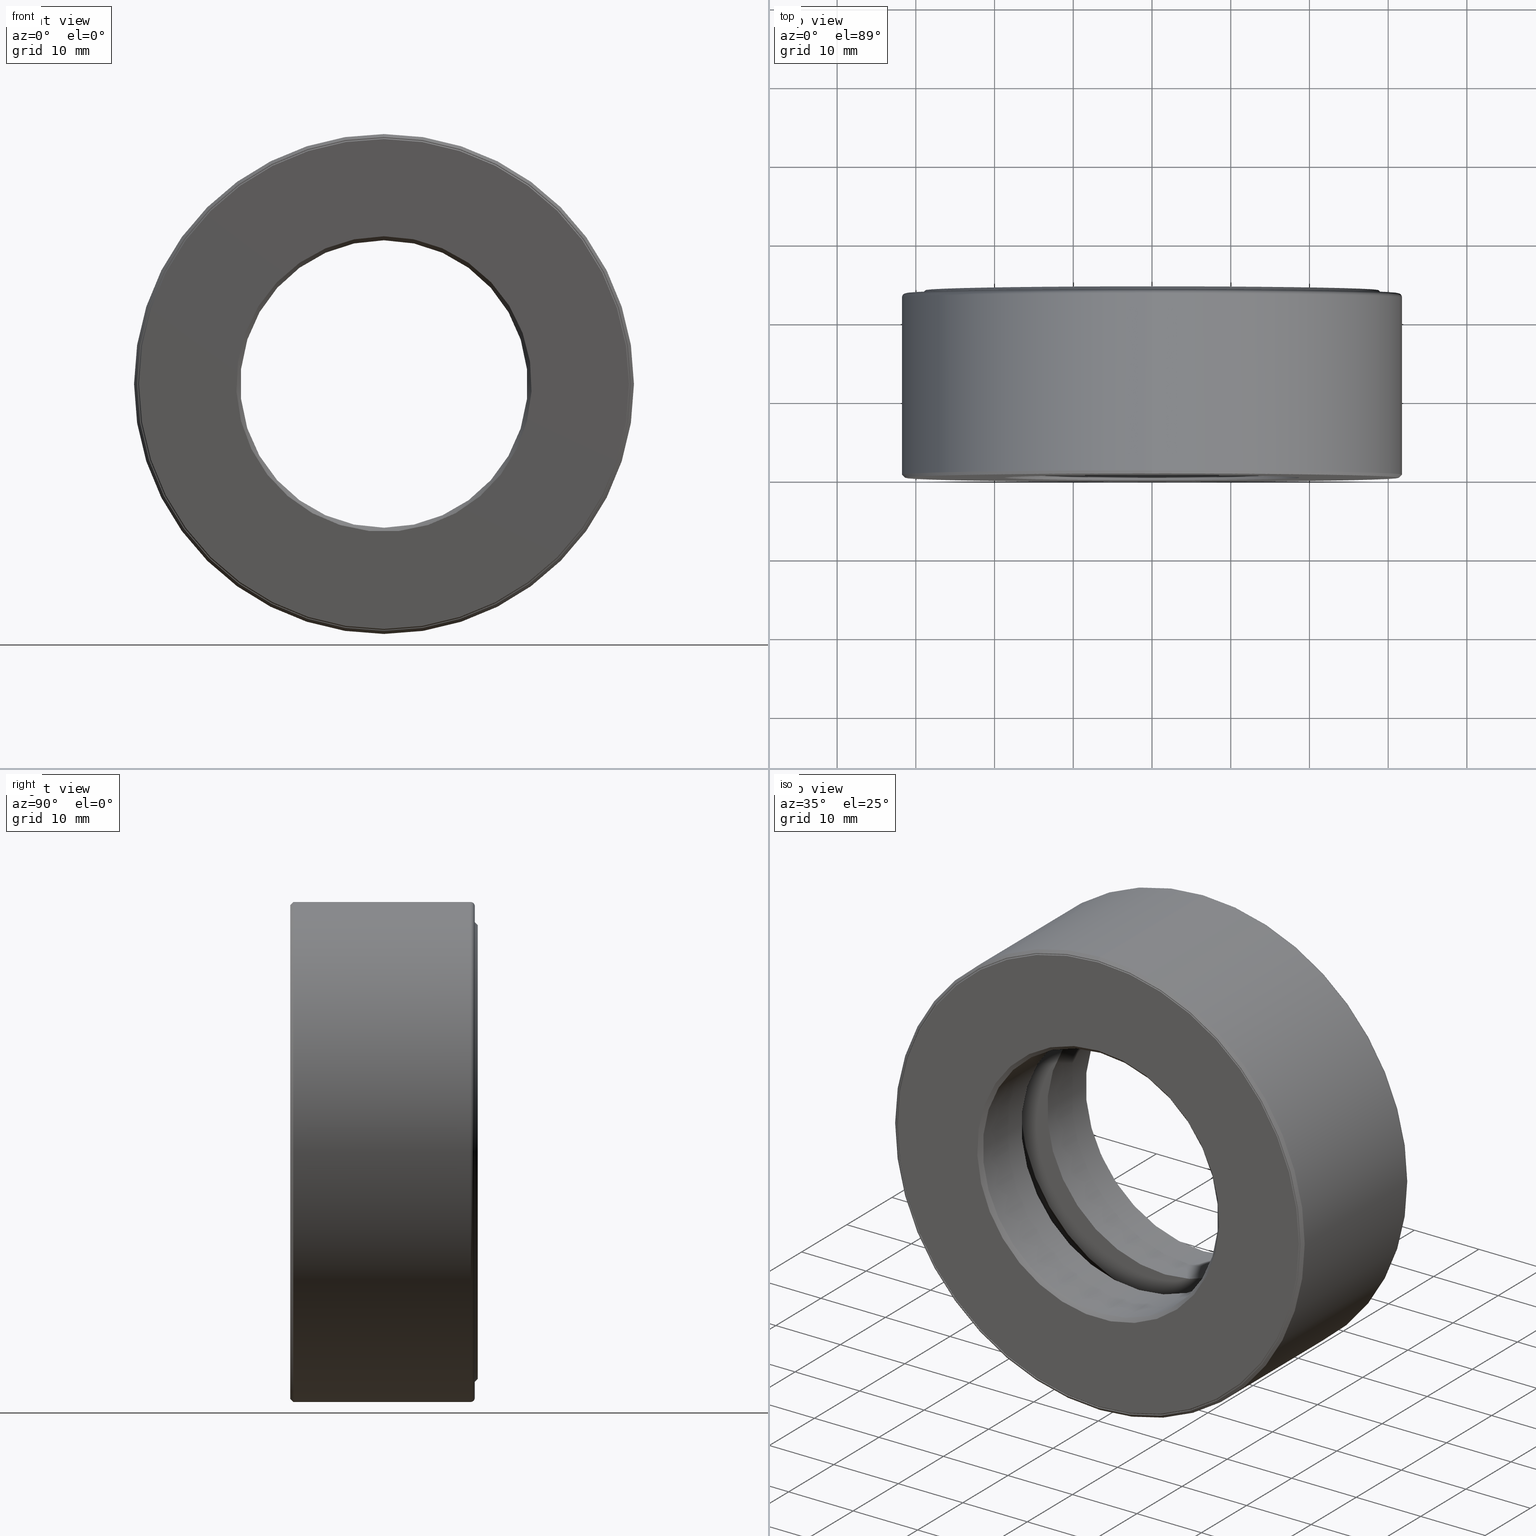
[diagram: canonical four-view strip — front | top / right | iso, engineering-drawing reading convention]
A machine part, canonical four-view strip (front | top / right | iso — engineering-drawing reading convention). The complete STEP part file that produces these views, byte-faithful:
ISO-10303-21;
HEADER;
FILE_DESCRIPTION (( 'STEP AP203' ),
    '1' );
FILE_NAME ('T-100-19.step',
    '2016-06-29T18:27:22',
    ( '' ),
    ( '' ),
    'SwSTEP 2.0',
    'SolidWorks 2016',
    '' );
FILE_SCHEMA (( 'CONFIG_CONTROL_DESIGN' ));
ENDSEC;

DATA;
#1 = LOCAL_TIME ( 14, 27, 22.00000000000000000, #587 ) ;
#2 = PRODUCT_DEFINITION ( 'UNKNOWN', '', #161, #477 ) ;
#3 = LENGTH_MEASURE_WITH_UNIT ( LENGTH_MEASURE( 0.02539999999999999900 ), #481 );
#4 = DIRECTION ( 'NONE',  ( -0.0000000000000000000, 1.000000000000000000, 0.0000000000000000000 ) ) ;
#5 = EDGE_LOOP ( 'NONE', ( #501 ) ) ;
#6 = CYLINDRICAL_SURFACE ( 'NONE', #164, 1.170000000000000200 ) ;
#7 = APPROVAL ( #20, 'UNSPECIFIED' ) ;
#8 = ADVANCED_FACE ( 'NONE', ( #28, #401 ), #355, .F. ) ;
#9 = DIRECTION ( 'NONE',  ( 0.0000000000000000000, 0.0000000000000000000, 1.000000000000000000 ) ) ;
#10 = PERSON_AND_ORGANIZATION ( #530, #162 ) ;
#11 = ADVANCED_FACE ( 'NONE', ( #203, #590 ), #226, .F. ) ;
#12 = FACE_OUTER_BOUND ( 'NONE', #250, .T. ) ;
#13 = CIRCLE ( 'NONE', #259, 1.250000000000000000 ) ;
#14 = PLANE ( 'NONE',  #450 ) ;
#15 = CARTESIAN_POINT ( 'NONE',  ( 0.0000000000000000000, 0.4687499999999999400, 0.0000000000000000000 ) ) ;
#16 = ADVANCED_FACE ( 'NONE', ( #370, #325 ), #134, .T. ) ;
#17 = CARTESIAN_POINT ( 'NONE',  ( 0.0000000000000000000, 0.0000000000000000000, 0.0000000000000000000 ) ) ;
#18 = AXIS2_PLACEMENT_3D ( 'NONE', #133, #49, #500 ) ;
#19 = ADVANCED_FACE ( 'NONE', ( #341, #383 ), #357, .F. ) ;
#20 = APPROVAL_STATUS ( 'not_yet_approved' ) ;
#21 = EDGE_LOOP ( 'NONE', ( #295 ) ) ;
#22 = FACE_BOUND ( 'NONE', #597, .T. ) ;
#23 = EDGE_CURVE ( 'NONE', #458, #458, #81, .T. ) ;
#24 = CARTESIAN_POINT ( 'NONE',  ( 0.0000000000000000000, 0.9024999999999998600, 1.250000000000000000 ) ) ;
#25 = CC_DESIGN_PERSON_AND_ORGANIZATION_ASSIGNMENT ( #189, #70, ( #2 ) ) ;
#26 = VERTEX_POINT ( 'NONE', #572 ) ;
#27 = EDGE_LOOP ( 'NONE', ( #156 ) ) ;
#28 = FACE_OUTER_BOUND ( 'NONE', #219, .T. ) ;
#29 = FACE_OUTER_BOUND ( 'NONE', #75, .T. ) ;
#30 = APPROVAL_ROLE ( '' ) ;
#31 = DIRECTION ( 'NONE',  ( 0.0000000000000000000, 0.0000000000000000000, 1.000000000000000000 ) ) ;
#32 = VERTEX_POINT ( 'NONE', #396 ) ;
#33 = CARTESIAN_POINT ( 'NONE',  ( 0.0000000000000000000, 0.3562500000000000700, 0.0000000000000000000 ) ) ;
#34 = APPROVAL_STATUS ( 'not_yet_approved' ) ;
#35 = CC_DESIGN_DATE_AND_TIME_ASSIGNMENT ( #112, #304, ( #281 ) ) ;
#36 = CLOSED_SHELL ( 'NONE', ( #558, #561, #438, #387, #198, #568, #467, #382 ) ) ;
#37 = CARTESIAN_POINT ( 'NONE',  ( 0.0000000000000000000, 0.3562500000000000700, 0.0000000000000000000 ) ) ;
#38 = EDGE_LOOP ( 'NONE', ( #214 ) ) ;
#39 = FACE_OUTER_BOUND ( 'NONE', #99, .T. ) ;
#40 = MANIFOLD_SOLID_BREP ( 'BALLS[2]', #508 ) ;
#41 = CARTESIAN_POINT ( 'NONE',  ( 0.0000000000000000000, 0.9174999999999995400, 0.0000000000000000000 ) ) ;
#42 = CC_DESIGN_DATE_AND_TIME_ASSIGNMENT ( #330, #394, ( #2 ) ) ;
#43 = DIRECTION ( 'NONE',  ( 0.0000000000000000000, 0.0000000000000000000, 1.000000000000000000 ) ) ;
#44 = VERTEX_POINT ( 'NONE', #352 ) ;
#45 = CARTESIAN_POINT ( 'NONE',  ( 0.0000000000000000000, 0.3562500000000000700, 0.0000000000000000000 ) ) ;
#46 = AXIS2_PLACEMENT_3D ( 'NONE', #520, #62, #285 ) ;
#47 = EDGE_LOOP ( 'NONE', ( #535 ) ) ;
#48 = FACE_OUTER_BOUND ( 'NONE', #105, .T. ) ;
#49 = DIRECTION ( 'NONE',  ( -0.0000000000000000000, 1.000000000000000000, -0.0000000000000000000 ) ) ;
#50 = DIRECTION ( 'NONE',  ( -0.0000000000000000000, 1.000000000000000000, -0.0000000000000000000 ) ) ;
#51 = VERTEX_POINT ( 'NONE', #68 ) ;
#52 = CARTESIAN_POINT ( 'NONE',  ( 0.0000000000000000000, -5.975917486140573900E-017, 0.0000000000000000000 ) ) ;
#53 = EDGE_CURVE ( 'NONE', #125, #125, #255, .T. ) ;
#54 = ORIENTED_EDGE ( 'NONE', *, *, #408, .F. ) ;
#55 = CYLINDRICAL_SURFACE ( 'NONE', #236, 1.250000000000000000 ) ;
#56 = DIRECTION ( 'NONE',  ( 0.0000000000000000000, 0.0000000000000000000, 1.000000000000000000 ) ) ;
#57 = APPROVAL_PERSON_ORGANIZATION ( #437, #222, #307 ) ;
#58 = DIRECTION ( 'NONE',  ( -0.0000000000000000000, 1.000000000000000000, -0.0000000000000000000 ) ) ;
#59 = EDGE_LOOP ( 'NONE', ( #209 ) ) ;
#60 = DIRECTION ( 'NONE',  ( 0.0000000000000000000, -1.000000000000000000, 0.0000000000000000000 ) ) ;
#61 = FACE_OUTER_BOUND ( 'NONE', #466, .T. ) ;
#62 = DIRECTION ( 'NONE',  ( 0.0000000000000000000, -1.000000000000000000, 0.0000000000000000000 ) ) ;
#63 = DIRECTION ( 'NONE',  ( -0.0000000000000000000, 1.000000000000000000, 0.0000000000000000000 ) ) ;
#64 = AXIS2_PLACEMENT_3D ( 'NONE', #239, #378, #436 ) ;
#65 = APPLICATION_CONTEXT ( 'configuration controlled 3d designs of mechanical parts and assemblies' ) ;
#66 = FACE_BOUND ( 'NONE', #448, .T. ) ;
#67 = ORIENTED_EDGE ( 'NONE', *, *, #139, .F. ) ;
#68 = CARTESIAN_POINT ( 'NONE',  ( 0.0000000000000000000, 0.5812499999999999300, 1.183500000000000000 ) ) ;
#69 = ADVANCED_FACE ( 'NONE', ( #66, #12 ), #400, .F. ) ;
#70 = PERSON_AND_ORGANIZATION_ROLE ( 'creator' ) ;
#71 = PERSON_AND_ORGANIZATION ( #530, #162 ) ;
#72 = CARTESIAN_POINT ( 'NONE',  ( 0.0000000000000000000, 0.005000000000000045200, 1.230000000000000000 ) ) ;
#73 = EDGE_LOOP ( 'NONE', ( #261 ) ) ;
#74 = CARTESIAN_POINT ( 'NONE',  ( 0.0000000000000000000, 0.9375000000000000000, 0.7387500000000001300 ) ) ;
#75 = EDGE_LOOP ( 'NONE', ( #121 ) ) ;
#76 = FACE_OUTER_BOUND ( 'NONE', #278, .T. ) ;
#77 = EDGE_CURVE ( 'NONE', #391, #391, #557, .T. ) ;
#78 = PRODUCT ( 'T-100-19', 'T-100-19', '', ( #109 ) ) ;
#79 = DIRECTION ( 'NONE',  ( -0.0000000000000000000, 1.000000000000000000, -0.0000000000000000000 ) ) ;
#80 = EDGE_LOOP ( 'NONE', ( #495 ) ) ;
#81 = CIRCLE ( 'NONE', #132, 0.7187499999999997800 ) ;
#82 = PLANE ( 'NONE',  #215 ) ;
#83 = AXIS2_PLACEMENT_3D ( 'NONE', #243, #289, #107 ) ;
#84 = DIRECTION ( 'NONE',  ( 0.0000000000000000000, -1.000000000000000000, 0.0000000000000000000 ) ) ;
#85 = DATE_AND_TIME ( #533, #167 ) ;
#86 = DIRECTION ( 'NONE',  ( 0.0000000000000000000, 0.0000000000000000000, 1.000000000000000000 ) ) ;
#87 = EDGE_CURVE ( 'NONE', #130, #130, #183, .T. ) ;
#88 = ORIENTED_EDGE ( 'NONE', *, *, #115, .F. ) ;
#89 = EDGE_LOOP ( 'NONE', ( #454 ) ) ;
#90 = CIRCLE ( 'NONE', #545, 1.229999999999999800 ) ;
#91 = CARTESIAN_POINT ( 'NONE',  ( 0.0000000000000000000, 0.5812499999999999300, 0.0000000000000000000 ) ) ;
#92 = CARTESIAN_POINT ( 'NONE',  ( 0.0000000000000000000, 0.9024999999999998600, 0.0000000000000000000 ) ) ;
#93 = AXIS2_PLACEMENT_3D ( 'NONE', #476, #434, #384 ) ;
#94 = EDGE_LOOP ( 'NONE', ( #460 ) ) ;
#95 = DIRECTION ( 'NONE',  ( -0.0000000000000000000, 1.000000000000000000, -0.0000000000000000000 ) ) ;
#96 = DIRECTION ( 'NONE',  ( 0.0000000000000000000, 0.0000000000000000000, 1.000000000000000000 ) ) ;
#97 = COORDINATED_UNIVERSAL_TIME_OFFSET ( 5, 0, .BEHIND. ) ;
#98 = ORIENTED_EDGE ( 'NONE', *, *, #435, .F. ) ;
#99 = EDGE_LOOP ( 'NONE', ( #106 ) ) ;
#100 = CYLINDRICAL_SURFACE ( 'NONE', #604, 1.223000000000000100 ) ;
#101 = DIRECTION ( 'NONE',  ( 0.0000000000000000000, 0.0000000000000000000, 1.000000000000000000 ) ) ;
#102 = CARTESIAN_POINT ( 'NONE',  ( 0.0000000000000000000, 0.9224999999999998800, 0.0000000000000000000 ) ) ;
#103 = AXIS2_PLACEMENT_3D ( 'NONE', #362, #129, #468 ) ;
#104 = ADVANCED_FACE ( 'NONE', ( #516, #440 ), #310, .T. ) ;
#105 = EDGE_LOOP ( 'NONE', ( #472 ) ) ;
#106 = ORIENTED_EDGE ( 'NONE', *, *, #435, .T. ) ;
#107 = DIRECTION ( 'NONE',  ( 0.0000000000000000000, 0.0000000000000000000, 1.000000000000000000 ) ) ;
#108 = CONICAL_SURFACE ( 'NONE', #361, 1.235000000000000100, 0.7853981633974463900 ) ;
#109 = MECHANICAL_CONTEXT ( 'NONE', #65, 'mechanical' ) ;
#110 = PLANE ( 'NONE',  #317 ) ;
#111 = AXIS2_PLACEMENT_3D ( 'NONE', #414, #365, #459 ) ;
#112 = DATE_AND_TIME ( #179, #554 ) ;
#113 = CARTESIAN_POINT ( 'NONE',  ( 0.0000000000000000000, 0.9024999999999998600, 1.170000000000000200 ) ) ;
#114 = EDGE_LOOP ( 'NONE', ( #478 ) ) ;
#115 = EDGE_CURVE ( 'NONE', #522, #522, #270, .T. ) ;
#116 = CARTESIAN_POINT ( 'NONE',  ( 0.0000000000000000000, 0.9375000000000000000, 1.134999999999999800 ) ) ;
#117 = CYLINDRICAL_SURFACE ( 'NONE', #93, 1.230000000000000000 ) ;
#118 = DIRECTION ( 'NONE',  ( 0.0000000000000000000, 0.0000000000000000000, 1.000000000000000000 ) ) ;
#119 = CARTESIAN_POINT ( 'NONE',  ( 0.0000000000000000000, 0.4687499999999999400, 0.0000000000000000000 ) ) ;
#120 = ORIENTED_EDGE ( 'NONE', *, *, #385, .F. ) ;
#121 = ORIENTED_EDGE ( 'NONE', *, *, #595, .T. ) ;
#122 = FACE_BOUND ( 'NONE', #94, .T. ) ;
#123 = EDGE_CURVE ( 'NONE', #32, #32, #486, .T. ) ;
#124 = PRODUCT_DEFINITION_SHAPE ( 'NONE', 'NONE',  #2 ) ;
#125 = VERTEX_POINT ( 'NONE', #573 ) ;
#126 = CARTESIAN_POINT ( 'NONE',  ( 0.0000000000000000000, 0.0000000000000000000, 0.0000000000000000000 ) ) ;
#127 = ORIENTED_EDGE ( 'NONE', *, *, #115, .T. ) ;
#128 = CYLINDRICAL_SURFACE ( 'NONE', #171, 1.230000000000000000 ) ;
#129 = DIRECTION ( 'NONE',  ( -0.0000000000000000000, 1.000000000000000000, 0.0000000000000000000 ) ) ;
#130 = VERTEX_POINT ( 'NONE', #441 ) ;
#131 = CARTESIAN_POINT ( 'NONE',  ( 1.033500000000000100, 0.4687499999999998900, -7.216891927388756100E-015 ) ) ;
#132 = AXIS2_PLACEMENT_3D ( 'NONE', #451, #447, #299 ) ;
#133 = CARTESIAN_POINT ( 'NONE',  ( 0.0000000000000000000, 0.9375000000000000000, 0.0000000000000000000 ) ) ;
#134 = CONICAL_SURFACE ( 'NONE', #145, 1.225000000000000100, 0.7853981633974325100 ) ;
#135 = CIRCLE ( 'NONE', #492, 1.225000000000000100 ) ;
#136 = DIRECTION ( 'NONE',  ( -0.0000000000000000000, 1.000000000000000000, -0.0000000000000000000 ) ) ;
#137 = PERSON_AND_ORGANIZATION ( #530, #162 ) ;
#138 = DIRECTION ( 'NONE',  ( 0.0000000000000000000, 0.0000000000000000000, 1.000000000000000000 ) ) ;
#139 = EDGE_CURVE ( 'NONE', #267, #267, #510, .T. ) ;
#140 = ORIENTED_EDGE ( 'NONE', *, *, #23, .F. ) ;
#141 = CARTESIAN_POINT ( 'NONE',  ( -1.033500000000000100, 0.4687499999999998900, 0.0000000000000000000 ) ) ;
#142 = MANIFOLD_SOLID_BREP ( 'Revolve2[1]', #556 ) ;
#143 = FACE_OUTER_BOUND ( 'NONE', #73, .T. ) ;
#144 = DIRECTION ( 'NONE',  ( 0.0000000000000000000, 0.0000000000000000000, 1.000000000000000000 ) ) ;
#145 = AXIS2_PLACEMENT_3D ( 'NONE', #253, #588, #31 ) ;
#146 = AXIS2_PLACEMENT_3D ( 'NONE', #443, #388, #576 ) ;
#147 = DIRECTION ( 'NONE',  ( 0.0000000000000000000, 0.0000000000000000000, 1.000000000000000000 ) ) ;
#148 = PERSON_AND_ORGANIZATION ( #530, #162 ) ;
#149 = EDGE_LOOP ( 'NONE', ( #127 ) ) ;
#150 = EDGE_LOOP ( 'NONE', ( #88 ) ) ;
#151 = FACE_OUTER_BOUND ( 'NONE', #489, .T. ) ;
#152 = DIRECTION ( 'NONE',  ( -1.000000000000000000, 0.0000000000000000000, 3.491481338843131800E-015 ) ) ;
#153 =( NAMED_UNIT ( * ) PLANE_ANGLE_UNIT ( ) SI_UNIT ( $, .RADIAN. ) );
#154 = AXIS2_PLACEMENT_3D ( 'NONE', #41, #216, #86 ) ;
#155 = DIRECTION ( 'NONE',  ( -0.0000000000000000000, 1.000000000000000000, -0.0000000000000000000 ) ) ;
#156 = ORIENTED_EDGE ( 'NONE', *, *, #488, .T. ) ;
#157 = AXIS2_PLACEMENT_3D ( 'NONE', #282, #194, #9 ) ;
#158 = FACE_OUTER_BOUND ( 'NONE', #578, .T. ) ;
#159 = APPROVAL_STATUS ( 'not_yet_approved' ) ;
#160 =( NAMED_UNIT ( * ) SI_UNIT ( $, .STERADIAN. ) SOLID_ANGLE_UNIT ( ) );
#161 = PRODUCT_DEFINITION_FORMATION_WITH_SPECIFIED_SOURCE ( 'ANY', '', #78, .NOT_KNOWN. ) ;
#162 = ORGANIZATION ( 'UNSPECIFIED', 'UNSPECIFIED', '' ) ;
#163 = ORIENTED_EDGE ( 'NONE', *, *, #339, .F. ) ;
#164 = AXIS2_PLACEMENT_3D ( 'NONE', #323, #553, #328 ) ;
#165 = CIRCLE ( 'NONE', #429, 1.222999999999999900 ) ;
#166 = PERSON_AND_ORGANIZATION_ROLE ( 'creator' ) ;
#167 = LOCAL_TIME ( 14, 27, 22.00000000000000000, #427 ) ;
#168 = DIRECTION ( 'NONE',  ( -0.0000000000000000000, 1.000000000000000000, -0.0000000000000000000 ) ) ;
#169 = CLOSED_SHELL ( 'NONE', ( #518 ) ) ;
#170 = CONICAL_SURFACE ( 'NONE', #46, 1.134999999999999800, 0.7853981633974490600 ) ;
#171 = AXIS2_PLACEMENT_3D ( 'NONE', #421, #136, #506 ) ;
#172 = DIRECTION ( 'NONE',  ( -0.0000000000000000000, 1.000000000000000000, -0.0000000000000000000 ) ) ;
#173 = DIRECTION ( 'NONE',  ( -0.0000000000000000000, 1.000000000000000000, -0.0000000000000000000 ) ) ;
#174 = VERTEX_POINT ( 'NONE', #298 ) ;
#175 = DIRECTION ( 'NONE',  ( -0.0000000000000000000, 1.000000000000000000, -0.0000000000000000000 ) ) ;
#176 = ORIENTED_EDGE ( 'NONE', *, *, #123, .F. ) ;
#177 = CIRCLE ( 'NONE', #224, 1.170000000000000200 ) ;
#178 = DIRECTION ( 'NONE',  ( -0.0000000000000000000, 1.000000000000000000, -0.0000000000000000000 ) ) ;
#179 = CALENDAR_DATE ( 2016, 29, 6 ) ;
#180 = VERTEX_POINT ( 'NONE', #251 ) ;
#181 = AXIS2_PLACEMENT_3D ( 'NONE', #409, #175, #499 ) ;
#182 = ORIENTED_EDGE ( 'NONE', *, *, #373, .T. ) ;
#183 = CIRCLE ( 'NONE', #550, 0.7187500000000000000 ) ;
#184 = EDGE_LOOP ( 'NONE', ( #410 ) ) ;
#185 = CARTESIAN_POINT ( 'NONE',  ( 0.0000000000000000000, 0.0000000000000000000, 0.0000000000000000000 ) ) ;
#186 = MANIFOLD_SOLID_BREP ( 'BALLS[1]', #332 ) ;
#187 = CC_DESIGN_SECURITY_CLASSIFICATION ( #281, ( #161 ) ) ;
#188 = CARTESIAN_POINT ( 'NONE',  ( 0.0000000000000000000, -6.016067509137474700E-017, 0.0000000000000000000 ) ) ;
#189 = PERSON_AND_ORGANIZATION ( #530, #162 ) ;
#190 = CARTESIAN_POINT ( 'NONE',  ( 0.0000000000000000000, -5.975917486140577600E-017, 0.0000000000000000000 ) ) ;
#191 = AXIS2_PLACEMENT_3D ( 'NONE', #141, #511, #231 ) ;
#192 = ORIENTED_EDGE ( 'NONE', *, *, #139, .T. ) ;
#193 = ORIENTED_EDGE ( 'NONE', *, *, #290, .T. ) ;
#194 = DIRECTION ( 'NONE',  ( -0.0000000000000000000, 1.000000000000000000, -0.0000000000000000000 ) ) ;
#195 = FACE_OUTER_BOUND ( 'NONE', #202, .T. ) ;
#196 = ADVANCED_FACE ( 'NONE', ( ), #536, .T. ) ;
#197 = PLANE ( 'NONE',  #64 ) ;
#198 = ADVANCED_FACE ( 'NONE', ( #195, #305 ), #213, .F. ) ;
#199 = CARTESIAN_POINT ( 'NONE',  ( 0.0000000000000000000, 0.0000000000000000000, 0.0000000000000000000 ) ) ;
#200 = PERSON_AND_ORGANIZATION ( #530, #162 ) ;
#201 = CARTESIAN_POINT ( 'NONE',  ( 0.0000000000000000000, 0.3562499999999999000, 1.229999999999999800 ) ) ;
#202 = EDGE_LOOP ( 'NONE', ( #220 ) ) ;
#203 = FACE_OUTER_BOUND ( 'NONE', #369, .T. ) ;
#204 = CARTESIAN_POINT ( 'NONE',  ( 0.0000000000000000000, 0.3562500000000000100, 1.183500000000000000 ) ) ;
#205 = CARTESIAN_POINT ( 'NONE',  ( 0.0000000000000000000, 0.9174999999999995400, 0.7187500000000000000 ) ) ;
#206 = AXIS2_PLACEMENT_3D ( 'NONE', #601, #50, #276 ) ;
#207 = DIRECTION ( 'NONE',  ( 0.0000000000000000000, -0.0000000000000000000, -1.000000000000000000 ) ) ;
#208 = EDGE_CURVE ( 'NONE', #258, #258, #519, .T. ) ;
#209 = ORIENTED_EDGE ( 'NONE', *, *, #246, .T. ) ;
#210 = DIRECTION ( 'NONE',  ( 0.0000000000000000000, -0.0000000000000000000, -1.000000000000000000 ) ) ;
#211 = ORIENTED_EDGE ( 'NONE', *, *, #77, .F. ) ;
#212 = CC_DESIGN_APPROVAL ( #7, ( #2 ) ) ;
#213 = CONICAL_SURFACE ( 'NONE', #504, 0.7187500000000000000, 0.7853981633974415100 ) ;
#214 = ORIENTED_EDGE ( 'NONE', *, *, #290, .F. ) ;
#215 = AXIS2_PLACEMENT_3D ( 'NONE', #37, #84, #591 ) ;
#216 = DIRECTION ( 'NONE',  ( -0.0000000000000000000, 1.000000000000000000, -0.0000000000000000000 ) ) ;
#217 = DIRECTION ( 'NONE',  ( 0.0000000000000000000, 0.0000000000000000000, 1.000000000000000000 ) ) ;
#218 = DIRECTION ( 'NONE',  ( 0.0000000000000000000, 0.0000000000000000000, 1.000000000000000000 ) ) ;
#219 = EDGE_LOOP ( 'NONE', ( #232 ) ) ;
#220 = ORIENTED_EDGE ( 'NONE', *, *, #343, .T. ) ;
#221 = CIRCLE ( 'NONE', #584, 1.230000000000000000 ) ;
#222 = APPROVAL ( #159, 'UNSPECIFIED' ) ;
#223 = CARTESIAN_POINT ( 'NONE',  ( 0.0000000000000000000, 0.8495000000000000300, 0.0000000000000000000 ) ) ;
#224 = AXIS2_PLACEMENT_3D ( 'NONE', #102, #331, #338 ) ;
#225 = CARTESIAN_POINT ( 'NONE',  ( 0.0000000000000000000, 0.0000000000000000000, 0.0000000000000000000 ) ) ;
#226 = CONICAL_SURFACE ( 'NONE', #515, 0.7187499999999997800, 0.7853981633974517200 ) ;
#227 = CYLINDRICAL_SURFACE ( 'NONE', #524, 0.7187500000000000000 ) ;
#228 = DIRECTION ( 'NONE',  ( 0.0000000000000000000, 0.0000000000000000000, 1.000000000000000000 ) ) ;
#229 = VERTEX_POINT ( 'NONE', #72 ) ;
#230 = AXIS2_PLACEMENT_3D ( 'NONE', #322, #4, #96 ) ;
#231 = DIRECTION ( 'NONE',  ( 1.000000000000000000, 0.0000000000000000000, 0.0000000000000000000 ) ) ;
#232 = ORIENTED_EDGE ( 'NONE', *, *, #235, .F. ) ;
#233 = CIRCLE ( 'NONE', #335, 0.8835000000000000600 ) ;
#234 = DIRECTION ( 'NONE',  ( 0.0000000000000000000, 0.0000000000000000000, 1.000000000000000000 ) ) ;
#235 = EDGE_CURVE ( 'NONE', #407, #407, #598, .T. ) ;
#236 = AXIS2_PLACEMENT_3D ( 'NONE', #199, #569, #144 ) ;
#237 = ADVANCED_FACE ( 'NONE', ( #503, #551 ), #82, .F. ) ;
#238 = APPROVAL_DATE_TIME ( #389, #512 ) ;
#239 = CARTESIAN_POINT ( 'NONE',  ( -2.409539675747121100E-016, 0.5812499999999999300, 0.0000000000000000000 ) ) ;
#240 = ADVANCED_FACE ( 'NONE', ( #61, #158 ), #386, .F. ) ;
#241 = EDGE_LOOP ( 'NONE', ( #193 ) ) ;
#242 = EDGE_LOOP ( 'NONE', ( #163 ) ) ;
#243 = CARTESIAN_POINT ( 'NONE',  ( 0.0000000000000000000, 0.9024999999999998600, 0.0000000000000000000 ) ) ;
#244 = FACE_OUTER_BOUND ( 'NONE', #38, .T. ) ;
#245 = CARTESIAN_POINT ( 'NONE',  ( 0.0000000000000000000, -6.016067509137474700E-017, 1.229999999999999800 ) ) ;
#246 = EDGE_CURVE ( 'NONE', #180, #180, #233, .T. ) ;
#247 = ADVANCED_FACE ( 'NONE', ( ), #412, .T. ) ;
#248 = APPLICATION_PROTOCOL_DEFINITION ( 'international standard', 'config_control_design', 1994, #65 ) ;
#249 = CC_DESIGN_PERSON_AND_ORGANIZATION_ASSIGNMENT ( #406, #313, ( #161 ) ) ;
#250 = EDGE_LOOP ( 'NONE', ( #549 ) ) ;
#251 = CARTESIAN_POINT ( 'NONE',  ( 0.0000000000000000000, 0.5812499999999999300, 0.8835000000000000600 ) ) ;
#252 = CC_DESIGN_PERSON_AND_ORGANIZATION_ASSIGNMENT ( #71, #166, ( #161 ) ) ;
#253 = CARTESIAN_POINT ( 'NONE',  ( 0.0000000000000000000, -5.975917486140573900E-017, 0.0000000000000000000 ) ) ;
#254 = AXIS2_PLACEMENT_3D ( 'NONE', #546, #462, #217 ) ;
#255 = CIRCLE ( 'NONE', #274, 1.230000000000000000 ) ;
#256 = FACE_BOUND ( 'NONE', #286, .T. ) ;
#257 = DIRECTION ( 'NONE',  ( 0.0000000000000000000, 0.0000000000000000000, -1.000000000000000000 ) ) ;
#258 = VERTEX_POINT ( 'NONE', #534 ) ;
#259 = AXIS2_PLACEMENT_3D ( 'NONE', #379, #58, #101 ) ;
#260 = FACE_OUTER_BOUND ( 'NONE', #59, .T. ) ;
#261 = ORIENTED_EDGE ( 'NONE', *, *, #297, .F. ) ;
#262 = SPHERICAL_SURFACE ( 'NONE', #539, 0.1874999999999999400 ) ;
#263 = PLANE ( 'NONE',  #103 ) ;
#264 = DIRECTION ( 'NONE',  ( 0.0000000000000000000, 0.0000000000000000000, 1.000000000000000000 ) ) ;
#265 = AXIS2_PLACEMENT_3D ( 'NONE', #119, #79, #118 ) ;
#266 = AXIS2_PLACEMENT_3D ( 'NONE', #17, #392, #531 ) ;
#267 = VERTEX_POINT ( 'NONE', #201 ) ;
#268 = DIRECTION ( 'NONE',  ( 0.0000000000000000000, 0.0000000000000000000, 1.000000000000000000 ) ) ;
#269 = ORIENTED_EDGE ( 'NONE', *, *, #53, .F. ) ;
#270 = CIRCLE ( 'NONE', #254, 1.183500000000000000 ) ;
#271 = FACE_OUTER_BOUND ( 'NONE', #324, .T. ) ;
#272 = DIRECTION ( 'NONE',  ( 0.0000000000000000000, 0.0000000000000000000, 1.000000000000000000 ) ) ;
#273 = MANIFOLD_SOLID_BREP ( 'Revolve3', #169 ) ;
#274 = AXIS2_PLACEMENT_3D ( 'NONE', #538, #405, #353 ) ;
#275 = VERTEX_POINT ( 'NONE', #113 ) ;
#276 = DIRECTION ( 'NONE',  ( 0.0000000000000000000, 0.0000000000000000000, 1.000000000000000000 ) ) ;
#277 = EDGE_LOOP ( 'NONE', ( #603 ) ) ;
#278 = EDGE_LOOP ( 'NONE', ( #375 ) ) ;
#279 = CARTESIAN_POINT ( 'NONE',  ( 0.0000000000000000000, 0.9375000000000000000, 0.0000000000000000000 ) ) ;
#280 = FACE_BOUND ( 'NONE', #47, .T. ) ;
#281 = SECURITY_CLASSIFICATION ( '', '', #537 ) ;
#282 = CARTESIAN_POINT ( 'NONE',  ( 0.0000000000000000000, 0.9024999999999998600, 0.0000000000000000000 ) ) ;
#283 = CIRCLE ( 'NONE', #146, 1.230000000000000000 ) ;
#284 = ADVANCED_FACE ( 'NONE', ( #527, #22 ), #263, .F. ) ;
#285 = DIRECTION ( 'NONE',  ( 0.0000000000000000000, 0.0000000000000000000, -1.000000000000000000 ) ) ;
#286 = EDGE_LOOP ( 'NONE', ( #502 ) ) ;
#287 = ADVANCED_BREP_SHAPE_REPRESENTATION ( 'T-100-19', ( #142, #529, #273, #186, #40, #347, #266 ), #376 ) ;
#288 = FACE_OUTER_BOUND ( 'NONE', #411, .T. ) ;
#289 = DIRECTION ( 'NONE',  ( -0.0000000000000000000, 1.000000000000000000, -0.0000000000000000000 ) ) ;
#290 = EDGE_CURVE ( 'NONE', #359, #359, #165, .T. ) ;
#291 = PLANE ( 'NONE',  #563 ) ;
#292 = LOCAL_TIME ( 14, 27, 22.00000000000000000, #97 ) ;
#293 = CARTESIAN_POINT ( 'NONE',  ( 0.0000000000000000000, 0.9224999999999998800, 1.170000000000000200 ) ) ;
#294 = ADVANCED_FACE ( 'NONE', ( #76, #29 ), #128, .F. ) ;
#295 = ORIENTED_EDGE ( 'NONE', *, *, #23, .T. ) ;
#296 =( CONVERSION_BASED_UNIT ( 'INCH', #3 ) LENGTH_UNIT ( ) NAMED_UNIT ( #521 ) );
#297 = EDGE_CURVE ( 'NONE', #51, #51, #433, .T. ) ;
#298 = CARTESIAN_POINT ( 'NONE',  ( 0.0000000000000000000, 0.0000000000000000000, 0.7387500000000000200 ) ) ;
#299 = DIRECTION ( 'NONE',  ( 0.0000000000000000000, 0.0000000000000000000, 1.000000000000000000 ) ) ;
#300 = EDGE_CURVE ( 'NONE', #44, #44, #221, .T. ) ;
#301 = CARTESIAN_POINT ( 'NONE',  ( 0.0000000000000000000, 0.02000000000000005900, 0.7187499999999997800 ) ) ;
#302 = CARTESIAN_POINT ( 'NONE',  ( -5.232370149155378900E-016, 0.3562499999999999000, 0.0000000000000000000 ) ) ;
#303 = EDGE_LOOP ( 'NONE', ( #269 ) ) ;
#304 = DATE_TIME_ROLE ( 'classification_date' ) ;
#305 = FACE_BOUND ( 'NONE', #431, .T. ) ;
#306 = DIRECTION ( 'NONE',  ( 0.0000000000000000000, -1.000000000000000000, 0.0000000000000000000 ) ) ;
#307 = APPROVAL_ROLE ( '' ) ;
#308 = AXIS2_PLACEMENT_3D ( 'NONE', #586, #402, #452 ) ;
#309 = ORIENTED_EDGE ( 'NONE', *, *, #595, .F. ) ;
#310 = TOROIDAL_SURFACE ( 'NONE', #592, 1.230000000000000000, 0.02000000000000005900 ) ;
#311 = DIRECTION ( 'NONE',  ( -0.0000000000000000000, 1.000000000000000000, -0.0000000000000000000 ) ) ;
#312 = ORIENTED_EDGE ( 'NONE', *, *, #404, .F. ) ;
#313 = PERSON_AND_ORGANIZATION_ROLE ( 'design_supplier' ) ;
#314 = DIRECTION ( 'NONE',  ( -0.0000000000000000000, 1.000000000000000000, -0.0000000000000000000 ) ) ;
#315 = VERTEX_POINT ( 'NONE', #116 ) ;
#316 = DIRECTION ( 'NONE',  ( -0.0000000000000000000, 1.000000000000000000, -0.0000000000000000000 ) ) ;
#317 = AXIS2_PLACEMENT_3D ( 'NONE', #344, #342, #480 ) ;
#318 = ORIENTED_EDGE ( 'NONE', *, *, #404, .T. ) ;
#319 = FACE_BOUND ( 'NONE', #27, .T. ) ;
#320 = DIRECTION ( 'NONE',  ( -0.0000000000000000000, 1.000000000000000000, -0.0000000000000000000 ) ) ;
#321 = AXIS2_PLACEMENT_3D ( 'NONE', #126, #413, #264 ) ;
#322 = CARTESIAN_POINT ( 'NONE',  ( -1.276717133350769500E-032, -5.995992497639026200E-017, 0.0000000000000000000 ) ) ;
#323 = CARTESIAN_POINT ( 'NONE',  ( 0.0000000000000000000, 0.0000000000000000000, 0.0000000000000000000 ) ) ;
#324 = EDGE_LOOP ( 'NONE', ( #318 ) ) ;
#325 = FACE_BOUND ( 'NONE', #589, .T. ) ;
#326 = UNCERTAINTY_MEASURE_WITH_UNIT (LENGTH_MEASURE( 1.000000000000000100E-005 ), #296, 'distance_accuracy_value', 'NONE');
#327 = DIRECTION ( 'NONE',  ( -0.0000000000000000000, 1.000000000000000000, -0.0000000000000000000 ) ) ;
#328 = DIRECTION ( 'NONE',  ( 0.0000000000000000000, 0.0000000000000000000, 1.000000000000000000 ) ) ;
#329 = PRODUCT_RELATED_PRODUCT_CATEGORY ( 'detail', '', ( #78 ) ) ;
#330 = DATE_AND_TIME ( #575, #292 ) ;
#331 = DIRECTION ( 'NONE',  ( -0.0000000000000000000, 1.000000000000000000, -0.0000000000000000000 ) ) ;
#332 = CLOSED_SHELL ( 'NONE', ( #432 ) ) ;
#333 = EDGE_LOOP ( 'NONE', ( #422 ) ) ;
#334 = DIRECTION ( 'NONE',  ( -0.0000000000000000000, 1.000000000000000000, -0.0000000000000000000 ) ) ;
#335 = AXIS2_PLACEMENT_3D ( 'NONE', #498, #316, #43 ) ;
#336 = FACE_BOUND ( 'NONE', #184, .T. ) ;
#337 = CC_DESIGN_APPROVAL ( #222, ( #161 ) ) ;
#338 = DIRECTION ( 'NONE',  ( 0.0000000000000000000, 0.0000000000000000000, 1.000000000000000000 ) ) ;
#339 = EDGE_CURVE ( 'NONE', #26, #26, #605, .T. ) ;
#340 = CARTESIAN_POINT ( 'NONE',  ( 0.0000000000000000000, 0.9024999999999998600, 0.0000000000000000000 ) ) ;
#341 = FACE_BOUND ( 'NONE', #150, .T. ) ;
#342 = DIRECTION ( 'NONE',  ( -0.0000000000000000000, 1.000000000000000000, 0.0000000000000000000 ) ) ;
#343 = EDGE_CURVE ( 'NONE', #540, #540, #364, .T. ) ;
#344 = CARTESIAN_POINT ( 'NONE',  ( 0.0000000000000000000, 0.9375000000000000000, 0.0000000000000000000 ) ) ;
#345 = LOCAL_TIME ( 14, 27, 22.00000000000000000, #594 ) ;
#346 = APPROVAL_ROLE ( '' ) ;
#347 = MANIFOLD_SOLID_BREP ( 'BALLS[3]', #348 ) ;
#348 = CLOSED_SHELL ( 'NONE', ( #247 ) ) ;
#349 = PERSON_AND_ORGANIZATION_ROLE ( 'design_owner' ) ;
#350 = ORIENTED_EDGE ( 'NONE', *, *, #528, .T. ) ;
#351 = FACE_OUTER_BOUND ( 'NONE', #485, .T. ) ;
#352 = CARTESIAN_POINT ( 'NONE',  ( 0.0000000000000000000, 0.9024999999999998600, 1.230000000000000000 ) ) ;
#353 = DIRECTION ( 'NONE',  ( 0.0000000000000000000, 0.0000000000000000000, 1.000000000000000000 ) ) ;
#354 = AXIS2_PLACEMENT_3D ( 'NONE', #33, #314, #358 ) ;
#355 = TOROIDAL_SURFACE ( 'NONE', #265, 1.033500000000000100, 0.1874999999999999700 ) ;
#356 = SPHERICAL_SURFACE ( 'NONE', #191, 0.1874999999999999400 ) ;
#357 = PLANE ( 'NONE',  #442 ) ;
#358 = DIRECTION ( 'NONE',  ( 0.0000000000000000000, 0.0000000000000000000, 1.000000000000000000 ) ) ;
#359 = VERTEX_POINT ( 'NONE', #581 ) ;
#360 = DIRECTION ( 'NONE',  ( 0.0000000000000000000, 0.0000000000000000000, 1.000000000000000000 ) ) ;
#361 = AXIS2_PLACEMENT_3D ( 'NONE', #190, #334, #147 ) ;
#362 = CARTESIAN_POINT ( 'NONE',  ( -1.115802807144333800E-032, -2.987958743070286400E-017, 0.0000000000000000000 ) ) ;
#363 = EDGE_LOOP ( 'NONE', ( #542 ) ) ;
#364 = CIRCLE ( 'NONE', #397, 0.7387500000000001300 ) ;
#365 = DIRECTION ( 'NONE',  ( 1.000000000000000000, 0.0000000000000000000, -1.047444401652939500E-014 ) ) ;
#366 = AXIS2_PLACEMENT_3D ( 'NONE', #91, #311, #457 ) ;
#367 = CARTESIAN_POINT ( 'NONE',  ( 0.0000000000000000000, 0.9174999999999995400, 0.0000000000000000000 ) ) ;
#368 = EDGE_CURVE ( 'NONE', #315, #315, #491, .T. ) ;
#369 = EDGE_LOOP ( 'NONE', ( #120 ) ) ;
#370 = FACE_OUTER_BOUND ( 'NONE', #526, .T. ) ;
#371 = CIRCLE ( 'NONE', #83, 1.170000000000000200 ) ;
#372 = CARTESIAN_POINT ( 'NONE',  ( 0.0000000000000000000, 0.0000000000000000000, 0.0000000000000000000 ) ) ;
#373 = EDGE_CURVE ( 'NONE', #507, #507, #135, .T. ) ;
#374 = DIRECTION ( 'NONE',  ( -0.0000000000000000000, 1.000000000000000000, -0.0000000000000000000 ) ) ;
#375 = ORIENTED_EDGE ( 'NONE', *, *, #488, .F. ) ;
#376 =( GEOMETRIC_REPRESENTATION_CONTEXT ( 3 ) GLOBAL_UNCERTAINTY_ASSIGNED_CONTEXT ( ( #326 ) ) GLOBAL_UNIT_ASSIGNED_CONTEXT ( ( #296, #153, #160 ) ) REPRESENTATION_CONTEXT ( 'NONE', 'WORKASPACE' ) );
#377 = FACE_OUTER_BOUND ( 'NONE', #5, .T. ) ;
#378 = DIRECTION ( 'NONE',  ( 0.0000000000000000000, -1.000000000000000000, 0.0000000000000000000 ) ) ;
#379 = CARTESIAN_POINT ( 'NONE',  ( 0.0000000000000000000, 0.01499999999999997700, 0.0000000000000000000 ) ) ;
#380 = VERTEX_POINT ( 'NONE', #245 ) ;
#381 = ADVANCED_FACE ( 'NONE', ( #288, #39 ), #6, .F. ) ;
#382 = ADVANCED_FACE ( 'NONE', ( #48, #244 ), #100, .T. ) ;
#383 = FACE_OUTER_BOUND ( 'NONE', #415, .T. ) ;
#384 = DIRECTION ( 'NONE',  ( 0.0000000000000000000, 0.0000000000000000000, 1.000000000000000000 ) ) ;
#385 = EDGE_CURVE ( 'NONE', #174, #174, #461, .T. ) ;
#386 = CYLINDRICAL_SURFACE ( 'NONE', #321, 0.7187499999999997800 ) ;
#387 = ADVANCED_FACE ( 'NONE', ( #403, #474 ), #227, .F. ) ;
#388 = DIRECTION ( 'NONE',  ( -0.0000000000000000000, 1.000000000000000000, -0.0000000000000000000 ) ) ;
#389 = DATE_AND_TIME ( #493, #1 ) ;
#390 = ADVANCED_FACE ( 'NONE', ( #395, #319 ), #560, .F. ) ;
#391 = VERTEX_POINT ( 'NONE', #205 ) ;
#392 = DIRECTION ( 'NONE',  ( 0.0000000000000000000, 0.0000000000000000000, 1.000000000000000000 ) ) ;
#393 = EDGE_LOOP ( 'NONE', ( #176 ) ) ;
#394 = DATE_TIME_ROLE ( 'creation_date' ) ;
#395 = FACE_OUTER_BOUND ( 'NONE', #547, .T. ) ;
#396 = CARTESIAN_POINT ( 'NONE',  ( 0.0000000000000000000, 0.5812499999999999300, 1.223000000000000100 ) ) ;
#397 = AXIS2_PLACEMENT_3D ( 'NONE', #279, #374, #56 ) ;
#398 = APPROVAL_PERSON_ORGANIZATION ( #10, #7, #346 ) ;
#399 = CARTESIAN_POINT ( 'NONE',  ( 0.0000000000000000000, -5.975917486140573900E-017, 1.225000000000000100 ) ) ;
#400 = PLANE ( 'NONE',  #308 ) ;
#401 = FACE_OUTER_BOUND ( 'NONE', #149, .T. ) ;
#402 = DIRECTION ( 'NONE',  ( 0.0000000000000000000, -1.000000000000000000, 0.0000000000000000000 ) ) ;
#403 = FACE_OUTER_BOUND ( 'NONE', #565, .T. ) ;
#404 = EDGE_CURVE ( 'NONE', #514, #514, #13, .T. ) ;
#405 = DIRECTION ( 'NONE',  ( -0.0000000000000000000, 1.000000000000000000, -0.0000000000000000000 ) ) ;
#406 = PERSON_AND_ORGANIZATION ( #530, #162 ) ;
#407 = VERTEX_POINT ( 'NONE', #523 ) ;
#408 = EDGE_CURVE ( 'NONE', #275, #275, #371, .T. ) ;
#409 = CARTESIAN_POINT ( 'NONE',  ( 0.0000000000000000000, -5.975917486140577600E-017, 0.0000000000000000000 ) ) ;
#410 = ORIENTED_EDGE ( 'NONE', *, *, #339, .T. ) ;
#411 = EDGE_LOOP ( 'NONE', ( #54 ) ) ;
#412 = SPHERICAL_SURFACE ( 'NONE', #111, 0.1874999999999999400 ) ;
#413 = DIRECTION ( 'NONE',  ( -0.0000000000000000000, 1.000000000000000000, -0.0000000000000000000 ) ) ;
#414 = CARTESIAN_POINT ( 'NONE',  ( -1.082533789108313600E-014, 0.4687499999999998900, -1.033500000000000100 ) ) ;
#415 = EDGE_LOOP ( 'NONE', ( #192 ) ) ;
#416 = FACE_OUTER_BOUND ( 'NONE', #455, .T. ) ;
#417 = DIRECTION ( 'NONE',  ( -0.0000000000000000000, 1.000000000000000000, -0.0000000000000000000 ) ) ;
#418 = AXIS2_PLACEMENT_3D ( 'NONE', #425, #320, #228 ) ;
#419 = COORDINATED_UNIVERSAL_TIME_OFFSET ( 5, 0, .BEHIND. ) ;
#420 = CALENDAR_DATE ( 2016, 29, 6 ) ;
#421 = CARTESIAN_POINT ( 'NONE',  ( 0.0000000000000000000, 0.0000000000000000000, 0.0000000000000000000 ) ) ;
#422 = ORIENTED_EDGE ( 'NONE', *, *, #300, .T. ) ;
#423 = EDGE_LOOP ( 'NONE', ( #571 ) ) ;
#424 = DIRECTION ( 'NONE',  ( 0.0000000000000000000, 0.0000000000000000000, 1.000000000000000000 ) ) ;
#425 = CARTESIAN_POINT ( 'NONE',  ( 0.0000000000000000000, 0.5812499999999999300, 0.0000000000000000000 ) ) ;
#426 = DIRECTION ( 'NONE',  ( -0.0000000000000000000, 1.000000000000000000, -0.0000000000000000000 ) ) ;
#427 = COORDINATED_UNIVERSAL_TIME_OFFSET ( 5, 0, .BEHIND. ) ;
#428 = DIRECTION ( 'NONE',  ( 0.0000000000000000000, 0.0000000000000000000, 1.000000000000000000 ) ) ;
#429 = AXIS2_PLACEMENT_3D ( 'NONE', #223, #417, #268 ) ;
#430 = ORIENTED_EDGE ( 'NONE', *, *, #208, .F. ) ;
#431 = EDGE_LOOP ( 'NONE', ( #211 ) ) ;
#432 = ADVANCED_FACE ( 'NONE', ( ), #262, .T. ) ;
#433 = CIRCLE ( 'NONE', #206, 1.183500000000000000 ) ;
#434 = DIRECTION ( 'NONE',  ( -0.0000000000000000000, 1.000000000000000000, -0.0000000000000000000 ) ) ;
#435 = EDGE_CURVE ( 'NONE', #483, #483, #177, .T. ) ;
#436 = DIRECTION ( 'NONE',  ( 0.0000000000000000000, -0.0000000000000000000, -1.000000000000000000 ) ) ;
#437 = PERSON_AND_ORGANIZATION ( #530, #162 ) ;
#438 = ADVANCED_FACE ( 'NONE', ( #336, #416 ), #197, .T. ) ;
#439 = ORIENTED_EDGE ( 'NONE', *, *, #246, .F. ) ;
#440 = FACE_OUTER_BOUND ( 'NONE', #449, .T. ) ;
#441 = CARTESIAN_POINT ( 'NONE',  ( 0.0000000000000000000, 0.3562500000000000700, 0.7187500000000000000 ) ) ;
#442 = AXIS2_PLACEMENT_3D ( 'NONE', #302, #453, #207 ) ;
#443 = CARTESIAN_POINT ( 'NONE',  ( 0.0000000000000000000, 0.005000000000000045200, 0.0000000000000000000 ) ) ;
#444 = ADVANCED_FACE ( 'NONE', ( #351, #582 ), #117, .F. ) ;
#445 = APPROVAL_DATE_TIME ( #85, #222 ) ;
#446 = DIRECTION ( 'NONE',  ( 0.0000000000000000000, 0.0000000000000000000, 1.000000000000000000 ) ) ;
#447 = DIRECTION ( 'NONE',  ( -0.0000000000000000000, 1.000000000000000000, -0.0000000000000000000 ) ) ;
#448 = EDGE_LOOP ( 'NONE', ( #98 ) ) ;
#449 = EDGE_LOOP ( 'NONE', ( #350 ) ) ;
#450 = AXIS2_PLACEMENT_3D ( 'NONE', #340, #63, #234 ) ;
#451 = CARTESIAN_POINT ( 'NONE',  ( 0.0000000000000000000, 0.02000000000000005900, 0.0000000000000000000 ) ) ;
#452 = DIRECTION ( 'NONE',  ( 0.0000000000000000000, -0.0000000000000000000, -1.000000000000000000 ) ) ;
#453 = DIRECTION ( 'NONE',  ( 0.0000000000000000000, -1.000000000000000000, 0.0000000000000000000 ) ) ;
#454 = ORIENTED_EDGE ( 'NONE', *, *, #343, .F. ) ;
#455 = EDGE_LOOP ( 'NONE', ( #439 ) ) ;
#456 = DIRECTION ( 'NONE',  ( -0.0000000000000000000, 1.000000000000000000, -0.0000000000000000000 ) ) ;
#457 = DIRECTION ( 'NONE',  ( 0.0000000000000000000, 0.0000000000000000000, 1.000000000000000000 ) ) ;
#458 = VERTEX_POINT ( 'NONE', #301 ) ;
#459 = DIRECTION ( 'NONE',  ( 1.047444401652939500E-014, 0.0000000000000000000, 1.000000000000000000 ) ) ;
#460 = ORIENTED_EDGE ( 'NONE', *, *, #368, .F. ) ;
#461 = CIRCLE ( 'NONE', #463, 0.7387500000000000200 ) ;
#462 = DIRECTION ( 'NONE',  ( -0.0000000000000000000, 1.000000000000000000, -0.0000000000000000000 ) ) ;
#463 = AXIS2_PLACEMENT_3D ( 'NONE', #185, #95, #602 ) ;
#464 = CC_DESIGN_PERSON_AND_ORGANIZATION_ASSIGNMENT ( #200, #585, ( #281 ) ) ;
#465 = DIRECTION ( 'NONE',  ( -0.0000000000000000000, 1.000000000000000000, -0.0000000000000000000 ) ) ;
#466 = EDGE_LOOP ( 'NONE', ( #140 ) ) ;
#467 = ADVANCED_FACE ( 'NONE', ( #496, #122 ), #170, .T. ) ;
#468 = DIRECTION ( 'NONE',  ( 0.0000000000000000000, 0.0000000000000000000, 1.000000000000000000 ) ) ;
#469 = AXIS2_PLACEMENT_3D ( 'NONE', #600, #168, #218 ) ;
#470 = SHAPE_DEFINITION_REPRESENTATION ( #124, #287 ) ;
#471 = ORIENTED_EDGE ( 'NONE', *, *, #368, .T. ) ;
#472 = ORIENTED_EDGE ( 'NONE', *, *, #123, .T. ) ;
#473 = CARTESIAN_POINT ( 'NONE',  ( 3.608445963694378000E-015, 0.4687499999999998900, 1.033500000000000100 ) ) ;
#474 = FACE_OUTER_BOUND ( 'NONE', #242, .T. ) ;
#475 = ADVANCED_FACE ( 'NONE', ( #479, #271 ), #55, .T. ) ;
#476 = CARTESIAN_POINT ( 'NONE',  ( 0.0000000000000000000, 0.0000000000000000000, 0.0000000000000000000 ) ) ;
#477 = DESIGN_CONTEXT ( 'detailed design', #487, 'design' ) ;
#478 = ORIENTED_EDGE ( 'NONE', *, *, #235, .T. ) ;
#479 = FACE_OUTER_BOUND ( 'NONE', #363, .T. ) ;
#480 = DIRECTION ( 'NONE',  ( 0.0000000000000000000, 0.0000000000000000000, 1.000000000000000000 ) ) ;
#481 =( LENGTH_UNIT ( ) NAMED_UNIT ( * ) SI_UNIT ( $, .METRE. ) );
#482 = ADVANCED_FACE ( 'NONE', ( #377, #280 ), #14, .F. ) ;
#483 = VERTEX_POINT ( 'NONE', #293 ) ;
#484 = CARTESIAN_POINT ( 'NONE',  ( 0.0000000000000000000, 0.01499999999999997700, 1.250000000000000000 ) ) ;
#485 = EDGE_LOOP ( 'NONE', ( #67 ) ) ;
#486 = CIRCLE ( 'NONE', #366, 1.223000000000000100 ) ;
#487 = APPLICATION_CONTEXT ( 'configuration controlled 3d designs of mechanical parts and assemblies' ) ;
#488 = EDGE_CURVE ( 'NONE', #380, #380, #90, .T. ) ;
#489 = EDGE_LOOP ( 'NONE', ( #312 ) ) ;
#490 = FACE_OUTER_BOUND ( 'NONE', #580, .T. ) ;
#491 = CIRCLE ( 'NONE', #18, 1.134999999999999800 ) ;
#492 = AXIS2_PLACEMENT_3D ( 'NONE', #52, #178, #138 ) ;
#493 = CALENDAR_DATE ( 2016, 29, 6 ) ;
#494 = VERTEX_POINT ( 'NONE', #24 ) ;
#495 = ORIENTED_EDGE ( 'NONE', *, *, #373, .F. ) ;
#496 = FACE_OUTER_BOUND ( 'NONE', #241, .T. ) ;
#497 = CC_DESIGN_APPROVAL ( #512, ( #281 ) ) ;
#498 = CARTESIAN_POINT ( 'NONE',  ( 0.0000000000000000000, 0.5812499999999999300, 0.0000000000000000000 ) ) ;
#499 = DIRECTION ( 'NONE',  ( 0.0000000000000000000, 0.0000000000000000000, 1.000000000000000000 ) ) ;
#500 = DIRECTION ( 'NONE',  ( 0.0000000000000000000, 0.0000000000000000000, 1.000000000000000000 ) ) ;
#501 = ORIENTED_EDGE ( 'NONE', *, *, #300, .F. ) ;
#502 = ORIENTED_EDGE ( 'NONE', *, *, #208, .T. ) ;
#503 = FACE_BOUND ( 'NONE', #277, .T. ) ;
#504 = AXIS2_PLACEMENT_3D ( 'NONE', #367, #456, #360 ) ;
#505 = APPROVAL_PERSON_ORGANIZATION ( #137, #512, #30 ) ;
#506 = DIRECTION ( 'NONE',  ( 0.0000000000000000000, 0.0000000000000000000, 1.000000000000000000 ) ) ;
#507 = VERTEX_POINT ( 'NONE', #399 ) ;
#508 = CLOSED_SHELL ( 'NONE', ( #196 ) ) ;
#509 = ORIENTED_EDGE ( 'NONE', *, *, #87, .T. ) ;
#510 = CIRCLE ( 'NONE', #469, 1.229999999999999800 ) ;
#511 = DIRECTION ( 'NONE',  ( 0.0000000000000000000, 0.0000000000000000000, -1.000000000000000000 ) ) ;
#512 = APPROVAL ( #34, 'UNSPECIFIED' ) ;
#513 = ADVANCED_FACE ( 'NONE', ( #151, #256 ), #108, .T. ) ;
#514 = VERTEX_POINT ( 'NONE', #484 ) ;
#515 = AXIS2_PLACEMENT_3D ( 'NONE', #583, #306, #257 ) ;
#516 = FACE_OUTER_BOUND ( 'NONE', #303, .T. ) ;
#517 = DIRECTION ( 'NONE',  ( -3.491481338843131800E-015, 0.0000000000000000000, -1.000000000000000000 ) ) ;
#518 = ADVANCED_FACE ( 'NONE', ( ), #356, .T. ) ;
#519 = CIRCLE ( 'NONE', #181, 1.235000000000000100 ) ;
#520 = CARTESIAN_POINT ( 'NONE',  ( 0.0000000000000000000, 0.9375000000000000000, 0.0000000000000000000 ) ) ;
#521 = DIMENSIONAL_EXPONENTS ( 1.000000000000000000, 0.0000000000000000000, 0.0000000000000000000, 0.0000000000000000000, 0.0000000000000000000, 0.0000000000000000000, 0.0000000000000000000 ) ;
#522 = VERTEX_POINT ( 'NONE', #204 ) ;
#523 = CARTESIAN_POINT ( 'NONE',  ( 0.0000000000000000000, 0.3562500000000000700, 0.8835000000000000600 ) ) ;
#524 = AXIS2_PLACEMENT_3D ( 'NONE', #225, #606, #272 ) ;
#525 = ORIENTED_EDGE ( 'NONE', *, *, #385, .T. ) ;
#526 = EDGE_LOOP ( 'NONE', ( #309 ) ) ;
#527 = FACE_OUTER_BOUND ( 'NONE', #80, .T. ) ;
#528 = EDGE_CURVE ( 'NONE', #494, #494, #566, .T. ) ;
#529 = MANIFOLD_SOLID_BREP ( 'Revolve2[2]', #36 ) ;
#530 = PERSON ( 'UNSPECIFIED', 'UNSPECIFIED', 'UNSPECIFIED', ('UNSPECIFIED'), ('UNSPECIFIED'), ('UNSPECIFIED') ) ;
#531 = DIRECTION ( 'NONE',  ( 1.000000000000000000, 0.0000000000000000000, 0.0000000000000000000 ) ) ;
#532 = CC_DESIGN_PERSON_AND_ORGANIZATION_ASSIGNMENT ( #148, #349, ( #78 ) ) ;
#533 = CALENDAR_DATE ( 2016, 29, 6 ) ;
#534 = CARTESIAN_POINT ( 'NONE',  ( 0.0000000000000000000, -5.975917486140577600E-017, 1.235000000000000100 ) ) ;
#535 = ORIENTED_EDGE ( 'NONE', *, *, #408, .T. ) ;
#536 = SPHERICAL_SURFACE ( 'NONE', #570, 0.1874999999999999400 ) ;
#537 = SECURITY_CLASSIFICATION_LEVEL ( 'unclassified' ) ;
#538 = CARTESIAN_POINT ( 'NONE',  ( 0.0000000000000000000, 0.9224999999999998800, 0.0000000000000000000 ) ) ;
#539 = AXIS2_PLACEMENT_3D ( 'NONE', #473, #152, #517 ) ;
#540 = VERTEX_POINT ( 'NONE', #74 ) ;
#541 = TOROIDAL_SURFACE ( 'NONE', #543, 1.033500000000000100, 0.1874999999999999700 ) ;
#542 = ORIENTED_EDGE ( 'NONE', *, *, #528, .F. ) ;
#543 = AXIS2_PLACEMENT_3D ( 'NONE', #15, #155, #446 ) ;
#544 = DIRECTION ( 'NONE',  ( 6.982962677686263600E-015, -0.0000000000000000000, 1.000000000000000000 ) ) ;
#545 = AXIS2_PLACEMENT_3D ( 'NONE', #188, #426, #428 ) ;
#546 = CARTESIAN_POINT ( 'NONE',  ( 0.0000000000000000000, 0.3562500000000000100, 0.0000000000000000000 ) ) ;
#547 = EDGE_LOOP ( 'NONE', ( #430 ) ) ;
#548 = DIRECTION ( 'NONE',  ( 0.0000000000000000000, 0.0000000000000000000, 1.000000000000000000 ) ) ;
#549 = ORIENTED_EDGE ( 'NONE', *, *, #53, .T. ) ;
#550 = AXIS2_PLACEMENT_3D ( 'NONE', #45, #173, #548 ) ;
#551 = FACE_OUTER_BOUND ( 'NONE', #114, .T. ) ;
#552 = DIRECTION ( 'NONE',  ( 0.0000000000000000000, 0.0000000000000000000, 1.000000000000000000 ) ) ;
#553 = DIRECTION ( 'NONE',  ( -0.0000000000000000000, 1.000000000000000000, -0.0000000000000000000 ) ) ;
#554 = LOCAL_TIME ( 14, 27, 22.00000000000000000, #419 ) ;
#555 = DATE_AND_TIME ( #420, #345 ) ;
#556 = CLOSED_SHELL ( 'NONE', ( #8, #19, #444, #482, #381, #69, #104, #475, #513, #390, #294, #16, #284, #11, #240, #237 ) ) ;
#557 = CIRCLE ( 'NONE', #154, 0.7187500000000000000 ) ;
#558 = ADVANCED_FACE ( 'NONE', ( #596, #559 ), #291, .T. ) ;
#559 = FACE_OUTER_BOUND ( 'NONE', #393, .T. ) ;
#560 = PLANE ( 'NONE',  #230 ) ;
#561 = ADVANCED_FACE ( 'NONE', ( #260, #143 ), #541, .F. ) ;
#562 = APPROVAL_DATE_TIME ( #555, #7 ) ;
#563 = AXIS2_PLACEMENT_3D ( 'NONE', #567, #60, #210 ) ;
#564 = ORIENTED_EDGE ( 'NONE', *, *, #77, .T. ) ;
#565 = EDGE_LOOP ( 'NONE', ( #564 ) ) ;
#566 = CIRCLE ( 'NONE', #157, 1.250000000000000000 ) ;
#567 = CARTESIAN_POINT ( 'NONE',  ( 1.004991548302119800E-015, 0.5812499999999999300, 0.0000000000000000000 ) ) ;
#568 = ADVANCED_FACE ( 'NONE', ( #490, #579 ), #110, .T. ) ;
#569 = DIRECTION ( 'NONE',  ( -0.0000000000000000000, 1.000000000000000000, -0.0000000000000000000 ) ) ;
#570 = AXIS2_PLACEMENT_3D ( 'NONE', #131, #544, #593 ) ;
#571 = ORIENTED_EDGE ( 'NONE', *, *, #297, .T. ) ;
#572 = CARTESIAN_POINT ( 'NONE',  ( 0.0000000000000000000, 0.5812499999999999300, 0.7187500000000000000 ) ) ;
#573 = CARTESIAN_POINT ( 'NONE',  ( 0.0000000000000000000, 0.9224999999999998800, 1.230000000000000000 ) ) ;
#574 = APPLICATION_PROTOCOL_DEFINITION ( 'international standard', 'config_control_design', 1994, #487 ) ;
#575 = CALENDAR_DATE ( 2016, 29, 6 ) ;
#576 = DIRECTION ( 'NONE',  ( 0.0000000000000000000, 0.0000000000000000000, 1.000000000000000000 ) ) ;
#577 = CARTESIAN_POINT ( 'NONE',  ( 0.0000000000000000000, 0.9024999999999998600, 0.0000000000000000000 ) ) ;
#578 = EDGE_LOOP ( 'NONE', ( #509 ) ) ;
#579 = FACE_BOUND ( 'NONE', #89, .T. ) ;
#580 = EDGE_LOOP ( 'NONE', ( #471 ) ) ;
#581 = CARTESIAN_POINT ( 'NONE',  ( 0.0000000000000000000, 0.8495000000000000300, 1.222999999999999900 ) ) ;
#582 = FACE_OUTER_BOUND ( 'NONE', #333, .T. ) ;
#583 = CARTESIAN_POINT ( 'NONE',  ( 0.0000000000000000000, 0.02000000000000005900, 0.0000000000000000000 ) ) ;
#584 = AXIS2_PLACEMENT_3D ( 'NONE', #92, #327, #424 ) ;
#585 = PERSON_AND_ORGANIZATION_ROLE ( 'classification_officer' ) ;
#586 = CARTESIAN_POINT ( 'NONE',  ( 0.0000000000000000000, 0.9224999999999998800, 0.0000000000000000000 ) ) ;
#587 = COORDINATED_UNIVERSAL_TIME_OFFSET ( 5, 0, .BEHIND. ) ;
#588 = DIRECTION ( 'NONE',  ( -0.0000000000000000000, 1.000000000000000000, -0.0000000000000000000 ) ) ;
#589 = EDGE_LOOP ( 'NONE', ( #182 ) ) ;
#590 = FACE_BOUND ( 'NONE', #21, .T. ) ;
#591 = DIRECTION ( 'NONE',  ( 0.0000000000000000000, -0.0000000000000000000, -1.000000000000000000 ) ) ;
#592 = AXIS2_PLACEMENT_3D ( 'NONE', #577, #172, #599 ) ;
#593 = DIRECTION ( 'NONE',  ( -1.000000000000000000, 0.0000000000000000000, 6.982962677686263600E-015 ) ) ;
#594 = COORDINATED_UNIVERSAL_TIME_OFFSET ( 5, 0, .BEHIND. ) ;
#595 = EDGE_CURVE ( 'NONE', #229, #229, #283, .T. ) ;
#596 = FACE_BOUND ( 'NONE', #423, .T. ) ;
#597 = EDGE_LOOP ( 'NONE', ( #525 ) ) ;
#598 = CIRCLE ( 'NONE', #354, 0.8835000000000000600 ) ;
#599 = DIRECTION ( 'NONE',  ( 0.0000000000000000000, 0.0000000000000000000, 1.000000000000000000 ) ) ;
#600 = CARTESIAN_POINT ( 'NONE',  ( 0.0000000000000000000, 0.3562499999999999000, 0.0000000000000000000 ) ) ;
#601 = CARTESIAN_POINT ( 'NONE',  ( 0.0000000000000000000, 0.5812499999999999300, 0.0000000000000000000 ) ) ;
#602 = DIRECTION ( 'NONE',  ( 0.0000000000000000000, 0.0000000000000000000, 1.000000000000000000 ) ) ;
#603 = ORIENTED_EDGE ( 'NONE', *, *, #87, .F. ) ;
#604 = AXIS2_PLACEMENT_3D ( 'NONE', #372, #465, #552 ) ;
#605 = CIRCLE ( 'NONE', #418, 0.7187500000000000000 ) ;
#606 = DIRECTION ( 'NONE',  ( -0.0000000000000000000, 1.000000000000000000, -0.0000000000000000000 ) ) ;
ENDSEC;
END-ISO-10303-21;
